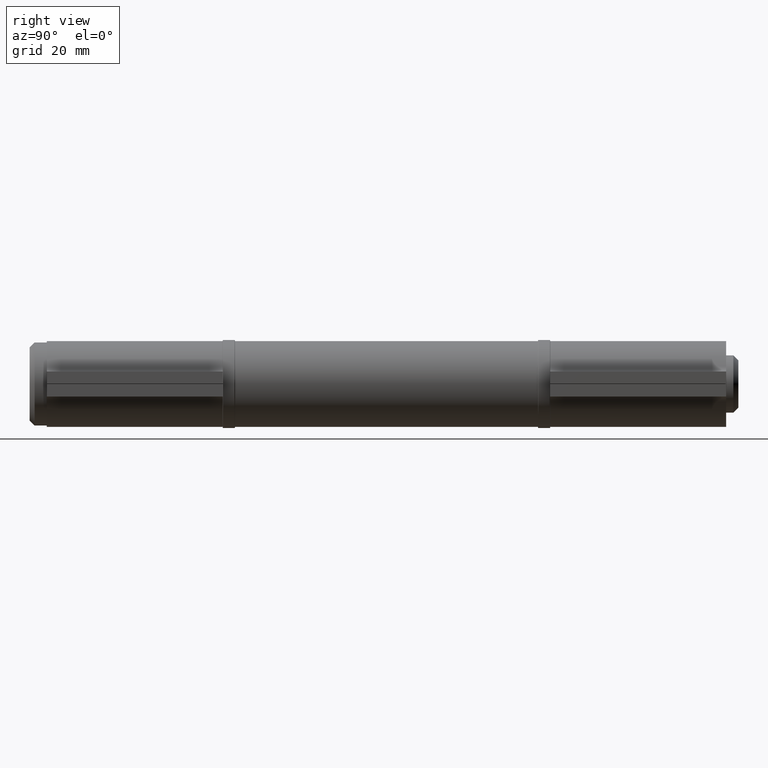
[diagram: clean part render]
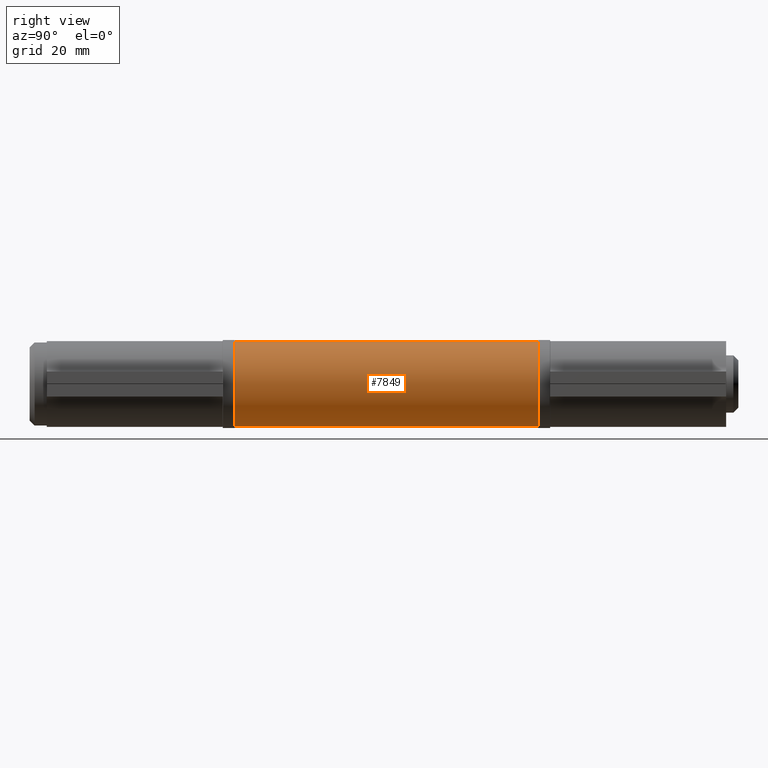
[diagram: same view with one face highlighted and labeled with its STEP entity id]
A machine part, right view. The second image highlights one B-rep face of the part: STEP entity #7849.
In plain terms, the highlighted cylindrical surface (partial cylindrical patch) has radius 8.8 mm, axis along (-0, -1, 0).
Its self-contained STEP definition (entity closure, byte-faithful):
#328 = LINE ( 'NONE', #9067, #8700 ) ;
#390 = CARTESIAN_POINT ( 'NONE',  ( 3.707407407407405486, 31.00000000000000000, -7.980922898731744652 ) ) ;
#940 = DIRECTION ( 'NONE',  ( 0.000000000000000000, 0.000000000000000000, -1.000000000000000000 ) ) ;
#994 = CARTESIAN_POINT ( 'NONE',  ( 3.707407407407405486, 31.00000000000000000, -7.980922898731744652 ) ) ;
#1320 = LINE ( 'NONE', #994, #6420 ) ;
#1349 = CYLINDRICAL_SURFACE ( 'NONE', #10152, 8.799999999999998934 ) ;
#1839 = VERTEX_POINT ( 'NONE', #8016 ) ;
#1902 = CIRCLE ( 'NONE', #5667, 8.799999999999998934 ) ;
#2276 = CARTESIAN_POINT ( 'NONE',  ( 0.000000000000000000, 31.00000000000000000, 0.000000000000000000 ) ) ;
#2395 = EDGE_CURVE ( 'NONE', #1839, #5674, #5621, .T. ) ;
#2995 = EDGE_LOOP ( 'NONE', ( #10654, #11069, #8385, #11491 ) ) ;
#3500 = CARTESIAN_POINT ( 'NONE',  ( 0.000000000000000000, -31.00000000000000000, 0.000000000000000000 ) ) ;
#4029 = CARTESIAN_POINT ( 'NONE',  ( -3.707407407407401490, -31.00000000000000000, -7.980922898731744652 ) ) ;
#4943 = EDGE_CURVE ( 'NONE', #7231, #10459, #1902, .T. ) ;
#5505 = CARTESIAN_POINT ( 'NONE',  ( 0.000000000000000000, 31.00000000000000000, 0.000000000000000000 ) ) ;
#5565 = EDGE_CURVE ( 'NONE', #1839, #7231, #328, .T. ) ;
#5621 = CIRCLE ( 'NONE', #8069, 8.799999999999998934 ) ;
#5667 = AXIS2_PLACEMENT_3D ( 'NONE', #3500, #10854, #9080 ) ;
#5674 = VERTEX_POINT ( 'NONE', #390 ) ;
#6224 = CARTESIAN_POINT ( 'NONE',  ( 3.707407407407405486, -31.00000000000000000, -7.980922898731744652 ) ) ;
#6407 = DIRECTION ( 'NONE',  ( -0.000000000000000000, -1.000000000000000000, -0.000000000000000000 ) ) ;
#6420 = VECTOR ( 'NONE', #7336, 1000.000000000000000 ) ;
#7231 = VERTEX_POINT ( 'NONE', #4029 ) ;
#7336 = DIRECTION ( 'NONE',  ( -0.000000000000000000, -1.000000000000000000, -0.000000000000000000 ) ) ;
#7849 = ADVANCED_FACE ( 'NONE', ( #10713 ), #1349, .T. ) ;
#8016 = CARTESIAN_POINT ( 'NONE',  ( -3.707407407407401490, 31.00000000000000000, -7.980922898731744652 ) ) ;
#8069 = AXIS2_PLACEMENT_3D ( 'NONE', #2276, #11241, #9364 ) ;
#8385 = ORIENTED_EDGE ( 'NONE', *, *, #2395, .F. ) ;
#8700 = VECTOR ( 'NONE', #9263, 1000.000000000000000 ) ;
#9067 = CARTESIAN_POINT ( 'NONE',  ( -3.707407407407401490, 31.00000000000000000, -7.980922898731744652 ) ) ;
#9080 = DIRECTION ( 'NONE',  ( 0.000000000000000000, 0.000000000000000000, 1.000000000000000000 ) ) ;
#9263 = DIRECTION ( 'NONE',  ( -0.000000000000000000, -1.000000000000000000, -0.000000000000000000 ) ) ;
#9364 = DIRECTION ( 'NONE',  ( 0.000000000000000000, 0.000000000000000000, 1.000000000000000000 ) ) ;
#10051 = EDGE_CURVE ( 'NONE', #5674, #10459, #1320, .T. ) ;
#10152 = AXIS2_PLACEMENT_3D ( 'NONE', #5505, #6407, #940 ) ;
#10459 = VERTEX_POINT ( 'NONE', #6224 ) ;
#10654 = ORIENTED_EDGE ( 'NONE', *, *, #4943, .T. ) ;
#10713 = FACE_OUTER_BOUND ( 'NONE', #2995, .T. ) ;
#10854 = DIRECTION ( 'NONE',  ( 0.000000000000000000, 1.000000000000000000, 0.000000000000000000 ) ) ;
#11069 = ORIENTED_EDGE ( 'NONE', *, *, #10051, .F. ) ;
#11241 = DIRECTION ( 'NONE',  ( 0.000000000000000000, 1.000000000000000000, 0.000000000000000000 ) ) ;
#11491 = ORIENTED_EDGE ( 'NONE', *, *, #5565, .T. ) ;